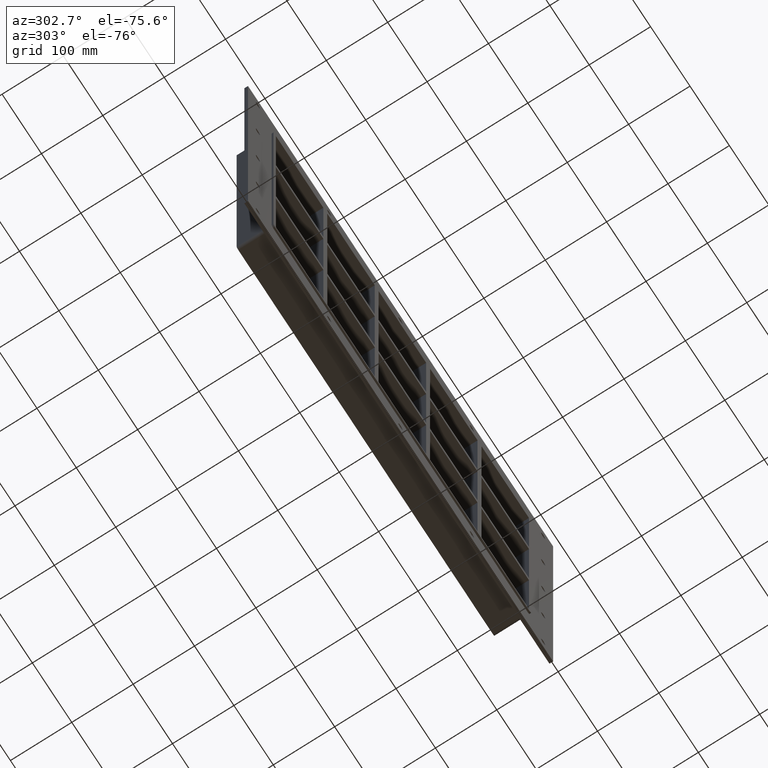
[diagram: clean part render]
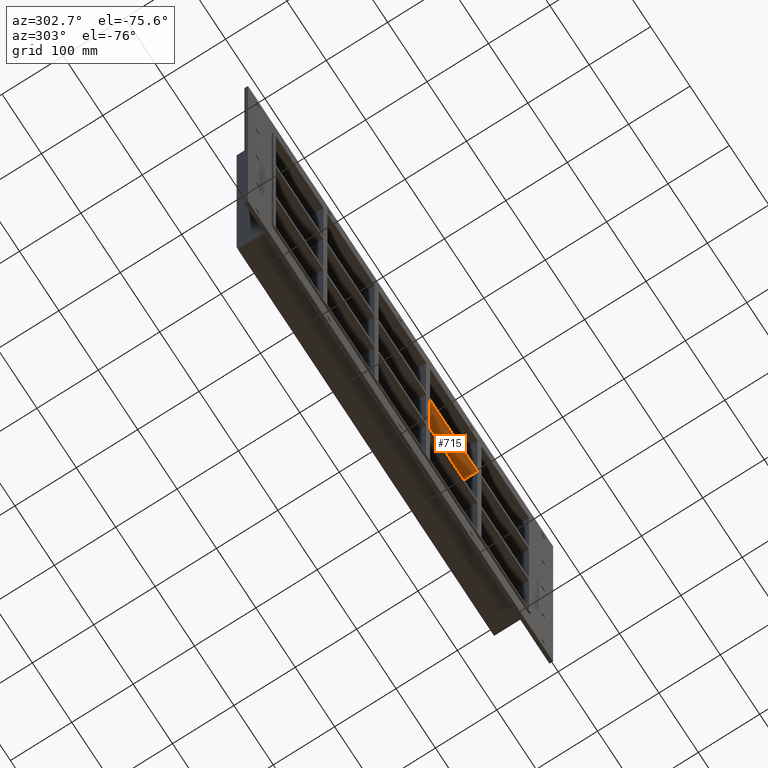
[diagram: same view with one face highlighted and labeled with its STEP entity id]
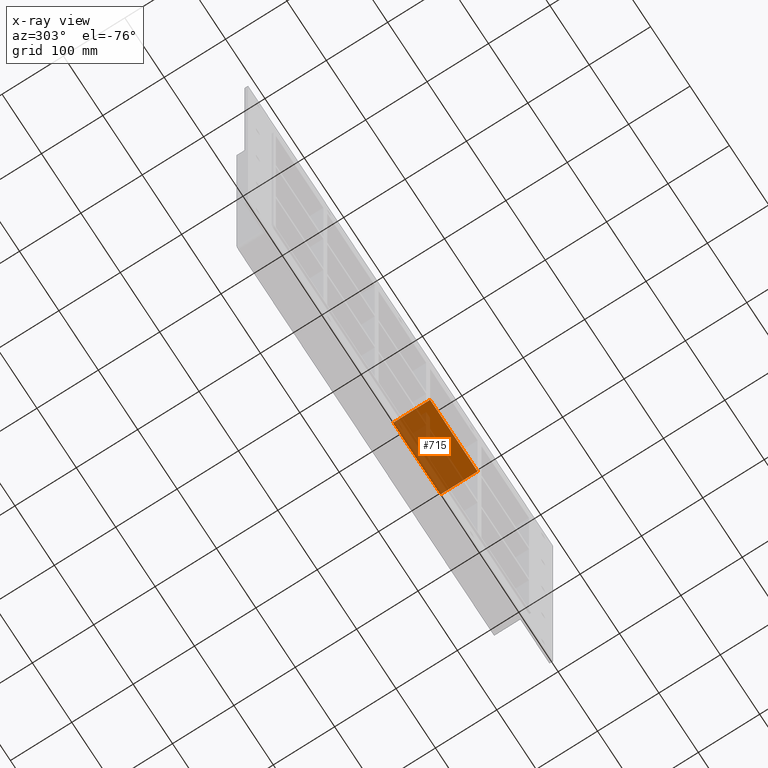
[diagram: x-ray of the same camera — body ghosted, the highlighted face saturated]
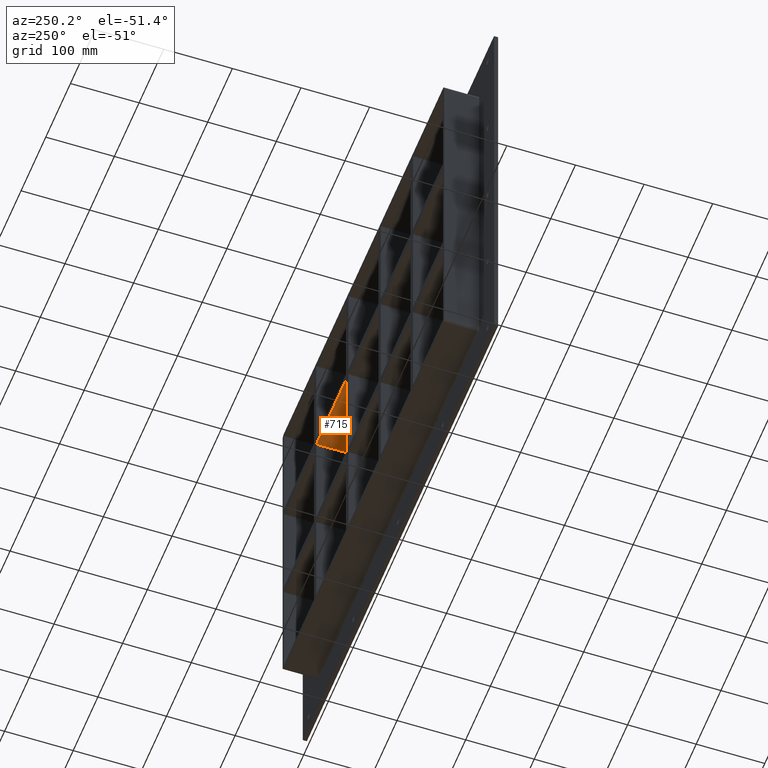
[diagram: same view with one face highlighted and labeled with its STEP entity id]
A machine part, auxiliary view. The second image highlights one B-rep face of the part: STEP entity #715.
The next image is the same camera in x-ray: the body ghosted, the highlighted face saturated — about 65% of this face is hidden behind the body in this view.
A second angle (auxiliary view) of the same face is appended — the face is thin or edge-on in the first view.
In plain terms, the highlighted planar face has unit normal (0, 0, -1).
Its self-contained STEP definition (entity closure, byte-faithful):
#676=CARTESIAN_POINT('',(321.25,-3.0,79.749999999989853));
#677=DIRECTION('',(0.0,0.0,-1.0));
#678=DIRECTION('',(-1.0,0.0,0.0));
#679=AXIS2_PLACEMENT_3D('',#676,#677,#678);
#680=PLANE('',#679);
#681=CARTESIAN_POINT('',(190.7499999999979,-3.0,79.749999999989825));
#682=VERTEX_POINT('',#681);
#683=CARTESIAN_POINT('',(190.7499999999979,57.0,79.749999999989825));
#684=VERTEX_POINT('',#683);
#685=CARTESIAN_POINT('',(190.74999999999787,-3.0,79.749999999989782));
#686=DIRECTION('',(0.0,1.0,0.0));
#687=VECTOR('',#686,60.0);
#688=LINE('',#685,#687);
#689=EDGE_CURVE('',#682,#684,#688,.T.);
#690=ORIENTED_EDGE('',*,*,#689,.F.);
#691=CARTESIAN_POINT('',(70.249999999992738,-3.0,79.749999999989782));
#692=VERTEX_POINT('',#691);
#693=CARTESIAN_POINT('',(190.7499999999979,-3.0,79.749999999989811));
#694=DIRECTION('',(-1.0,0.0,0.0));
#695=VECTOR('',#694,120.50000000000517);
#696=LINE('',#693,#695);
#697=EDGE_CURVE('',#682,#692,#696,.T.);
#698=ORIENTED_EDGE('',*,*,#697,.T.);
#699=CARTESIAN_POINT('',(70.249999999992738,57.0,79.749999999989782));
#700=VERTEX_POINT('',#699);
#701=CARTESIAN_POINT('',(70.249999999992738,57.0,79.749999999989797));
#702=DIRECTION('',(0.0,-1.0,0.0));
#703=VECTOR('',#702,60.0);
#704=LINE('',#701,#703);
#705=EDGE_CURVE('',#700,#692,#704,.T.);
#706=ORIENTED_EDGE('',*,*,#705,.F.);
#707=CARTESIAN_POINT('',(190.7499999999979,57.0,79.749999999989811));
#708=DIRECTION('',(-1.0,0.0,0.0));
#709=VECTOR('',#708,120.50000000000517);
#710=LINE('',#707,#709);
#711=EDGE_CURVE('',#684,#700,#710,.T.);
#712=ORIENTED_EDGE('',*,*,#711,.F.);
#713=EDGE_LOOP('',(#690,#698,#706,#712));
#714=FACE_OUTER_BOUND('',#713,.T.);
#715=ADVANCED_FACE('',(#714),#680,.T.);